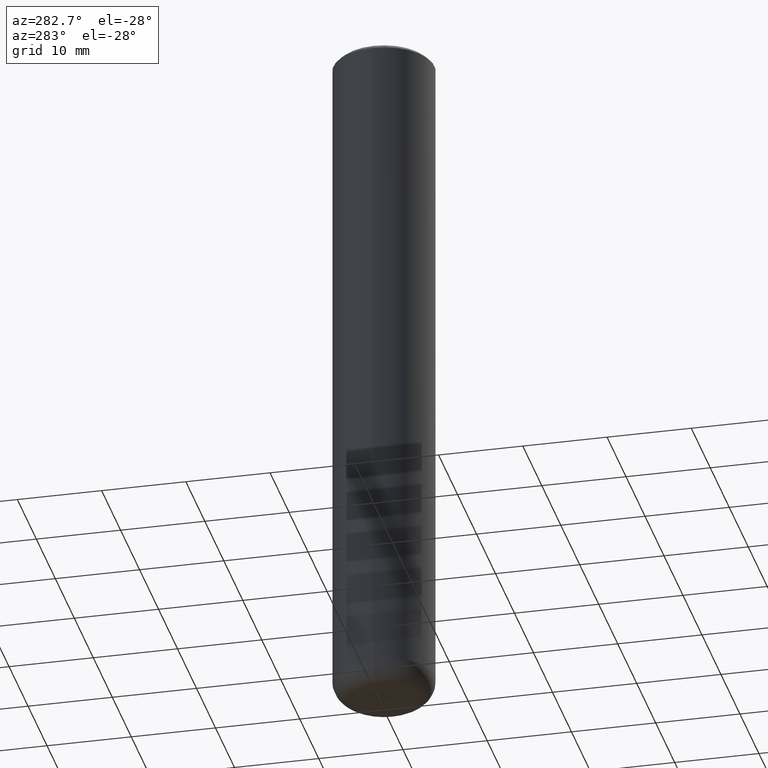
[diagram: clean part render]
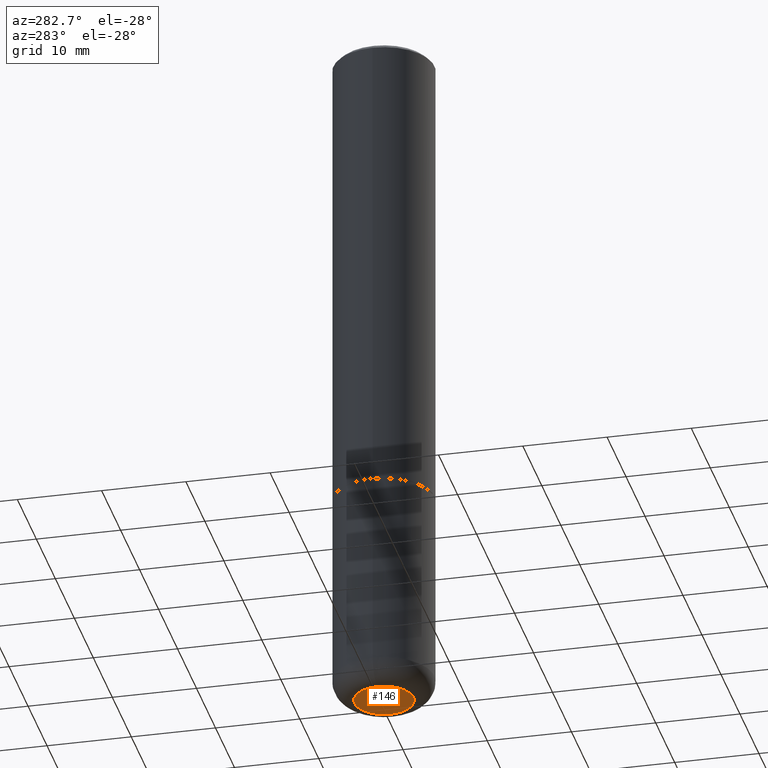
[diagram: same view with one face highlighted and labeled with its STEP entity id]
A machine part, auxiliary view. The second image highlights one B-rep face of the part: STEP entity #146.
In plain terms, the highlighted planar face has unit normal (0, -0, -1).
Its self-contained STEP definition (entity closure, byte-faithful):
#31 = CIRCLE ( 'NONE', #398, 0.1378000000000000058 ) ;
#44 = PLANE ( 'NONE',  #159 ) ;
#49 = EDGE_CURVE ( 'NONE', #60, #414, #31, .T. ) ;
#60 = VERTEX_POINT ( 'NONE', #247 ) ;
#61 = CARTESIAN_POINT ( 'NONE',  ( 7.991058417971171713E-29, -1.140911357093774644E-14, -3.267700000000000049 ) ) ;
#74 = CARTESIAN_POINT ( 'NONE',  ( 7.991058417971171713E-29, -1.140911357093774644E-14, -3.267700000000000049 ) ) ;
#99 = ORIENTED_EDGE ( 'NONE', *, *, #49, .F. ) ;
#130 = EDGE_LOOP ( 'NONE', ( #409, #99 ) ) ;
#146 = ADVANCED_FACE ( 'NONE', ( #364 ), #44, .T. ) ;
#157 = AXIS2_PLACEMENT_3D ( 'NONE', #318, #314, #315 ) ;
#159 = AXIS2_PLACEMENT_3D ( 'NONE', #74, #204, #170 ) ;
#170 = DIRECTION ( 'NONE',  ( -1.000000000000000000, 6.982962677686265922E-15, -4.876176775795935793E-29 ) ) ;
#190 = DIRECTION ( 'NONE',  ( -2.445468806185136597E-29, 3.491481338843145583E-15, 1.000000000000000000 ) ) ;
#204 = DIRECTION ( 'NONE',  ( 2.438088387897960049E-29, -3.491481338843145188E-15, -1.000000000000000000 ) ) ;
#218 = CARTESIAN_POINT ( 'NONE',  ( 0.1378000000000000058, -1.237136582792291392E-14, -3.267700000000000049 ) ) ;
#243 = CIRCLE ( 'NONE', #157, 0.1378000000000000058 ) ;
#247 = CARTESIAN_POINT ( 'NONE',  ( -0.1378000000000000058, -9.908617773195276440E-15, -3.267700000000000049 ) ) ;
#314 = DIRECTION ( 'NONE',  ( -2.445468806185136597E-29, 3.491481338843145583E-15, 1.000000000000000000 ) ) ;
#315 = DIRECTION ( 'NONE',  ( 1.000000000000000000, -6.982962677686265922E-15, 0.000000000000000000 ) ) ;
#318 = CARTESIAN_POINT ( 'NONE',  ( 7.991058417971171713E-29, -1.140911357093774644E-14, -3.267700000000000049 ) ) ;
#364 = FACE_OUTER_BOUND ( 'NONE', #130, .T. ) ;
#377 = DIRECTION ( 'NONE',  ( 1.000000000000000000, -6.982962677686265922E-15, 0.000000000000000000 ) ) ;
#398 = AXIS2_PLACEMENT_3D ( 'NONE', #61, #190, #377 ) ;
#409 = ORIENTED_EDGE ( 'NONE', *, *, #411, .F. ) ;
#411 = EDGE_CURVE ( 'NONE', #414, #60, #243, .T. ) ;
#414 = VERTEX_POINT ( 'NONE', #218 ) ;